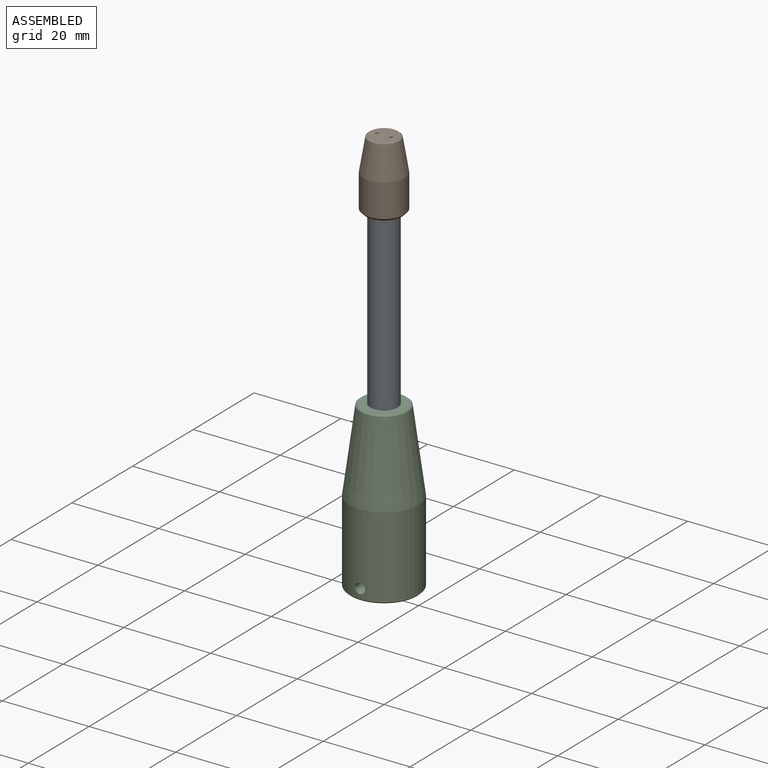
[diagram: assembled view]
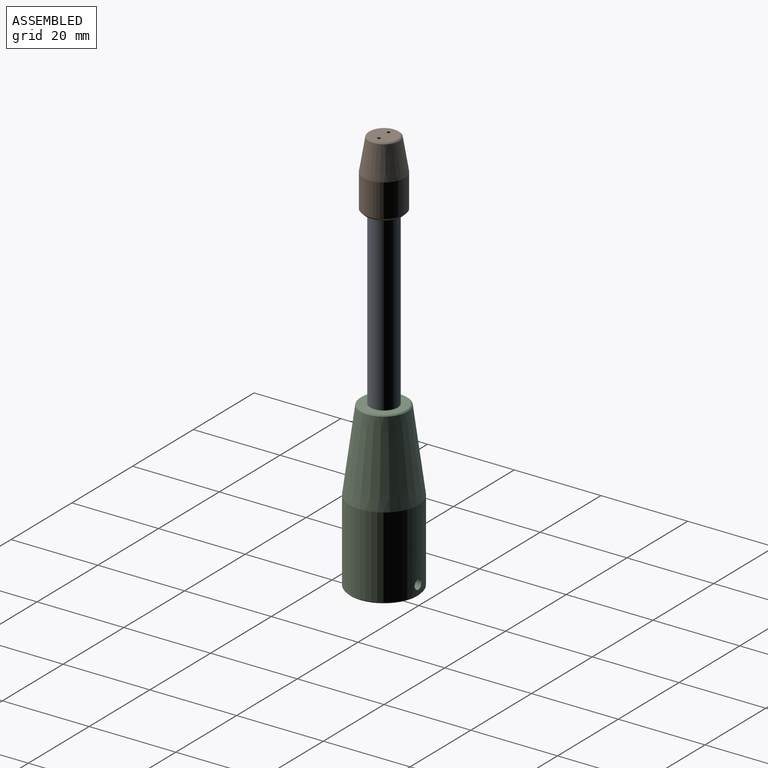
[diagram: assembled view, second angle]
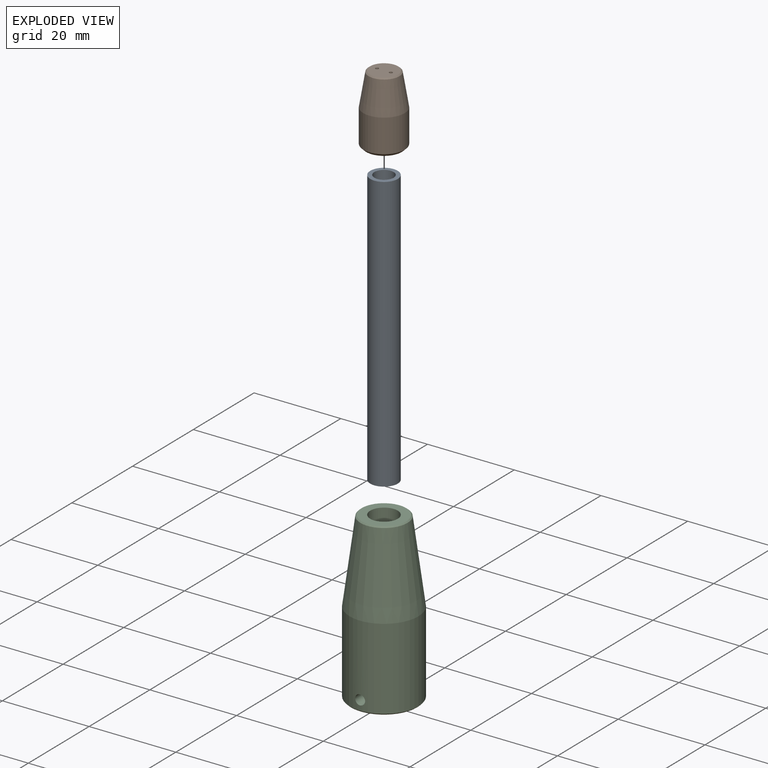
[diagram: exploded view]
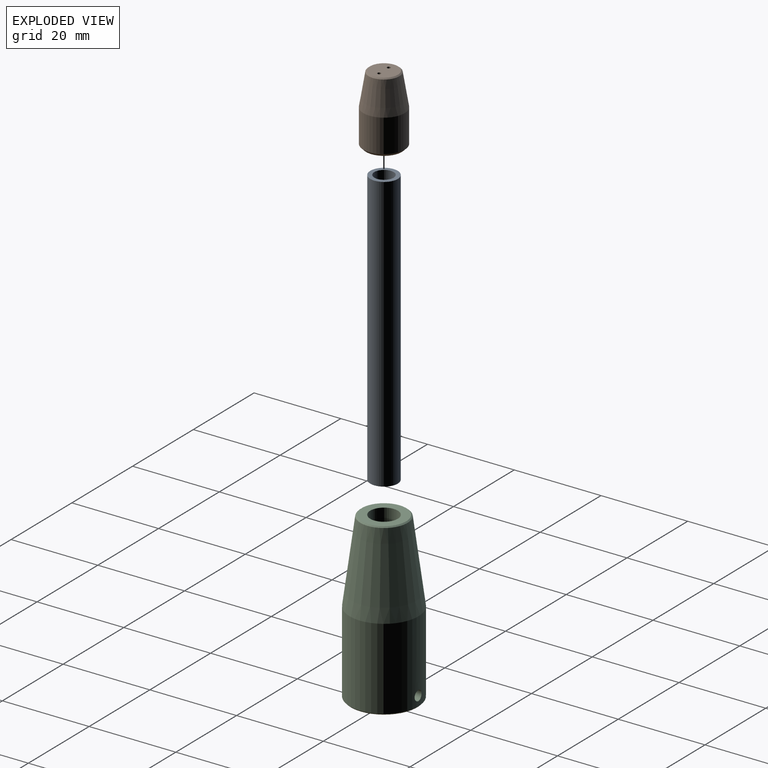
[diagram: exploded view, second angle]
ASSEMBLY  parts=3 mates=2
PART A: 4 faces, bbox 6.4x6.4x63.5 mm
  f0: cylinder r=2.22mm len=63.5mm, axis (0,0,-1), area 886.7mm2, adj f2,f3
  f1: cylinder r=3.17mm len=63.5mm, axis (0,0,-1), area 1266.8mm2, adj f2,f3
  f2: plane 6.35x6.35mm, normal (0,0,1), area 16.2mm2, adj f0,f1
  f3: plane 6.35x6.35mm, normal (0,0,-1), area 16.2mm2, adj f0,f1
PART B: 10 faces, bbox 9.5x9.5x15.9 mm
  f0: cylinder r=4.76mm len=9.53mm, axis (0,0,-1), area 228mm2, adj f3,f4
  f1: plane 6.48x6.48mm, normal (0,0,1), area 32mm2, adj f7,f8,f9
  f2: plane 8.26x8.26mm, normal (0,0,-1), area 21.9mm2, adj f3,f5
  f3: cone r=4.76mm half-angle=45deg, axis (0,0,1), area 25.1mm2, adj f0,f2
  f4: cone r=3.49mm half-angle=9.5deg, axis (0,0,-1), area 194.7mm2, adj f0,f7
  f5: cylinder r=3.17mm len=7.62mm, axis (0,0,-1), area 152mm2, adj f2,f6
  f6: plane 6.35x6.35mm, normal (0,0,-1), area 30.8mm2, adj f5,f8,f9
  f7: cone r=3.24mm half-angle=49.7deg, axis (0,0,-1), area 8.2mm2, adj f1,f4
  f8: cylinder r=0.38mm len=8.26mm, axis (0,0,1), area 19.8mm2, adj f1,f6
  f9: cylinder r=0.38mm len=8.26mm, axis (0,0,1), area 19.8mm2, adj f1,f6
PART C: 14 faces, bbox 15.9x15.9x38.1 mm
  f0: cylinder r=5.4mm len=10.8mm, axis (0,0,-1), area 115.4mm2, adj f9,f10,f12,f13
  f1: cylinder r=3.17mm len=13.65mm, axis (0,0,1), area 272.4mm2, adj f3,f11
  f2: cylinder r=7.94mm len=18.76mm, axis (0,0,-1), area 927.3mm2, adj f5,f6,f12,f13
  f3: plane 10.29x10.29mm, normal (0,0,1), area 51.4mm2, adj f1,f7
  f4: plane 15.29x15.29mm, normal (0,0,-1), area 69.4mm2, adj f6,f9
  f5: cone r=5.4mm half-angle=7.6deg, axis (0,0,-1), area 796.5mm2, adj f2,f7
  f6: cone r=7.94mm half-angle=45deg, axis (0,0,1), area 20.1mm2, adj f2,f4
  f7: cone r=5.14mm half-angle=48.8deg, axis (0,0,-1), area 12.7mm2, adj f3,f5
  f8: cylinder r=5.4mm len=16.35mm, axis (0,0,-1), area 554.3mm2, adj f10,f11
  f9: cone r=5.4mm half-angle=45deg, axis (0,0,-1), area 32.2mm2, adj f0,f4
  f10: torus R=5.4mm, axis (0,0,-1), area 93.3mm2, adj f0,f8
  f11: cone r=8.57mm half-angle=45deg, axis (0,0,-1), area 84.6mm2, adj f1,f8
  f12: cylinder r=1.14mm len=2.66mm, axis (0,-1,0), area 18.4mm2, adj f0,f2
  f13: cylinder r=1.14mm len=2.66mm, axis (0,-1,0), area 18.4mm2, adj f0,f2
PLACE A t=(0,0,22.22)mm
PLACE B t=(0,0,78.1)mm
PLACE C at identity
MATE fastened A.f1 <-> C.f1  axis (0,0,-1) through (0,0,22.22)mm
MATE fastened B.f5 <-> A.f1  axis (0,0,-1) through (0,0,85.72)mm
